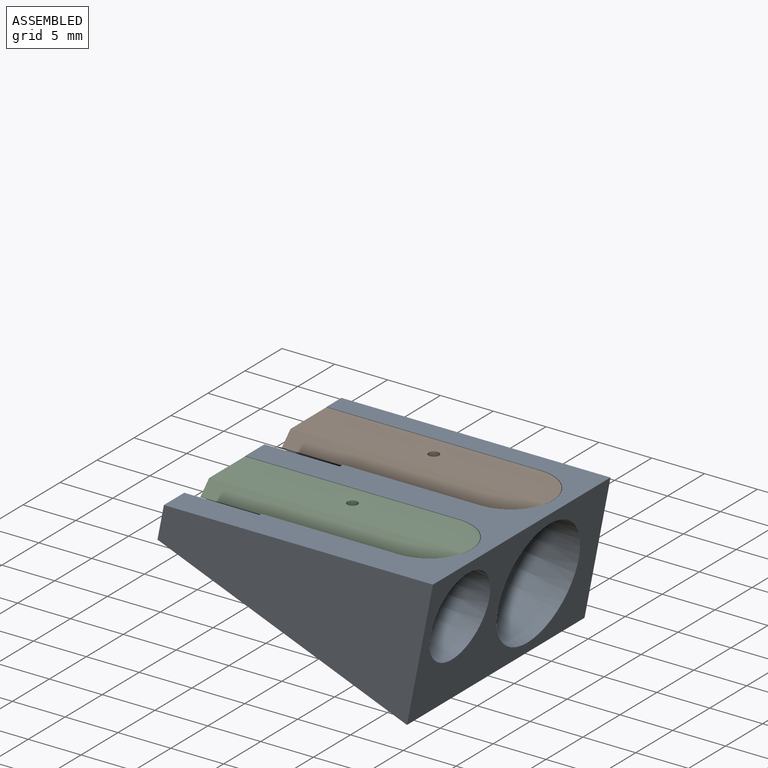
[diagram: assembled view]
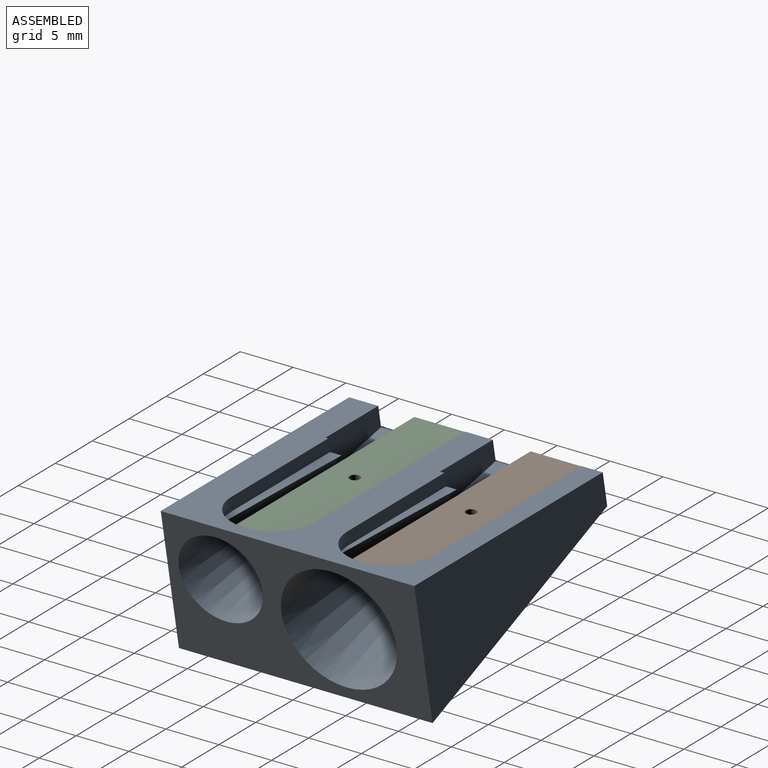
[diagram: assembled view, second angle]
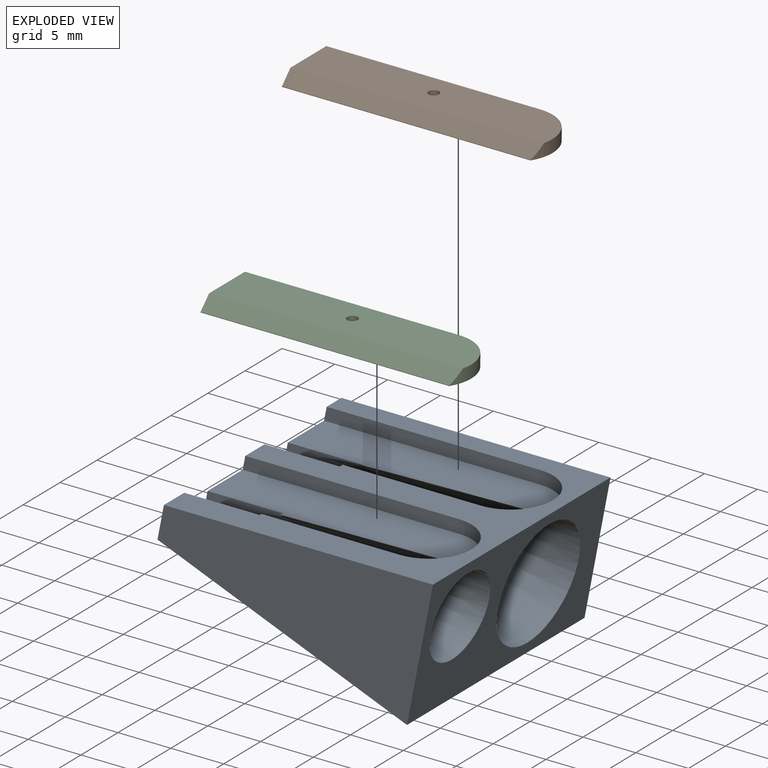
[diagram: exploded view]
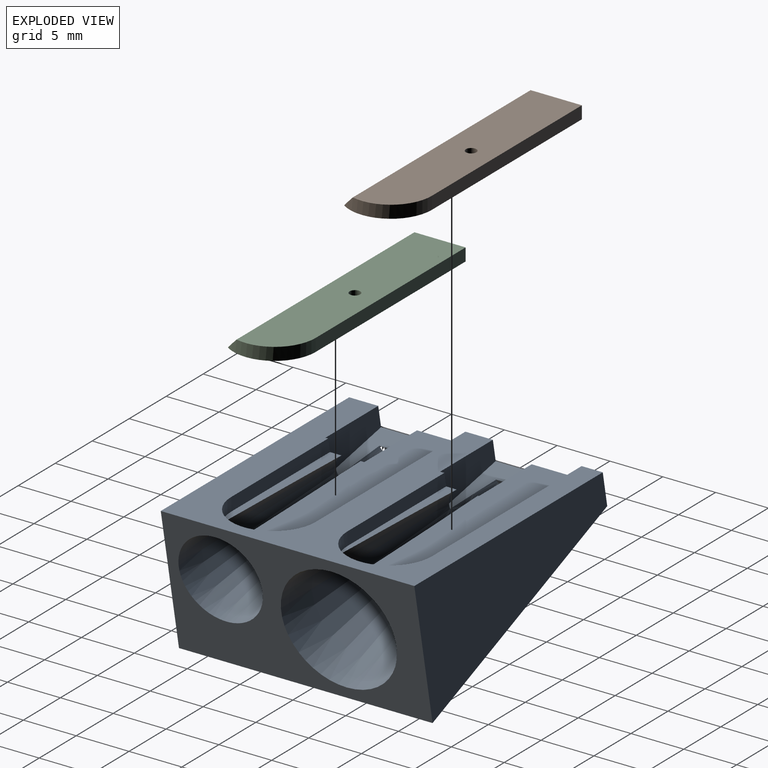
[diagram: exploded view, second angle]
ASSEMBLY  parts=3 mates=2
PART A: 30 faces, bbox 14.1x26.7x25.2 mm
  f0: plane 25x24mm, normal (0.98,0.19,0), area 232.8mm2, adj f1,f9,f10,f11,f19,f20,f21,f22
  f1: plane 13.09x3.77mm, normal (0,0,-1), area 16.5mm2, adj f0,f2,f9,f29
  f2: plane 15.19x2.95mm, normal (0.98,0.19,0), area 12.6mm2, adj f1,f3,f9,f29
  f3: cone r=3.99mm half-angle=7.4deg, axis (0.06,-1,0), area 296.9mm2, adj f2,f4,f5,f6,f7,f8,f9,f25
  f4: plane 24.01x5.1mm, normal (0.98,0.19,0), area 113.9mm2, adj f3,f5,f6,f9,f10,f27
  f5: plane 0.35x0.31mm, normal (0,1,0), area 0mm2, adj f3,f4,f6
  f6: plane 7x2.09mm, normal (0,0,1), area 6.2mm2, adj f3,f4,f5,f8,f27
  f7: cone r=0mm half-angle=86.4deg, axis (0.06,-1,0), area 0mm2, adj f3,f8
  f8: plane 8.17x4.67mm, normal (1,0,0), area 13.3mm2, adj f3,f6,f7,f27,f28,f29
  f9: cylinder r=4mm len=8mm, axis (0.98,0.19,0), area 15.2mm2, adj f0,f1,f2,f3,f4,f10
  f10: plane 20.09x5.13mm, normal (0,0,1), area 25.4mm2, adj f0,f4,f9,f27
  f11: plane 7x3.36mm, normal (0,0,-1), area 18.8mm2, adj f0,f12,f19,f27
  f12: plane 7.1x3.6mm, normal (1,0,0), area 12.3mm2, adj f11,f13,f14,f18,f19,f27
  f13: plane 1.82x0.59mm, normal (0,-1,0), area 0.8mm2, adj f12,f14
  f14: cone r=1mm half-angle=11deg, axis (0,-1,0), area 406mm2, adj f12,f13,f15,f16,f17,f18,f19,f21
  f15: plane 24.01x5mm, normal (0.98,0.19,0), area 111.9mm2, adj f14,f16,f18,f21,f22,f27
  f16: plane 0.1x0.07mm, normal (0,1,0), area 0mm2, adj f14,f15,f18
  f17: plane 14.8x2.88mm, normal (0.98,0.19,0), area 10mm2, adj f14,f19,f20,f21
  f18: plane 7x2.09mm, normal (0,0,1), area 3.7mm2, adj f12,f14,f15,f16,f27
  f19: plane 3.36x1.4mm, normal (0,1,0), area 1.9mm2, adj f0,f11,f12,f14,f17,f20
  f20: plane 13.09x3.77mm, normal (0,0,-1), area 16.5mm2, adj f0,f17,f19,f21
  f21: cylinder r=4mm len=8mm, axis (0.98,0.19,0), area 15.2mm2, adj f0,f14,f15,f17,f20,f22
  f22: plane 20.09x5.13mm, normal (0,0,1), area 25.4mm2, adj f0,f15,f21,f27
  f23: plane 25x12.9mm, normal (0,0,-1), area 201mm2, adj f0,f24,f25,f27
  f24: plane 25x24mm, normal (-0.98,0.19,0), area 611.2mm2, adj f23,f25,f26,f27
  f25: plane 24x12.9mm, normal (0,-1,0), area 166.9mm2, adj f0,f3,f14,f23,f24,f26
  f26: plane 25x12.9mm, normal (0,0,1), area 201mm2, adj f0,f24,f25,f27
  f27: plane 24x3.18mm, normal (0,1,0), area 50.1mm2, adj f0,f4,f6,f8,f10,f11,f12,f15
  f28: plane 7x3.36mm, normal (0,0,-1), area 18.8mm2, adj f0,f8,f27,f29
  f29: plane 3.38x1.36mm, normal (0,1,0), area 2mm2, adj f0,f1,f2,f3,f8,f28
PART B: 8 faces, bbox 24.2x6x1.2 mm
  f0: plane 6x1.2mm, normal (-1,0,0), area 6.5mm2, adj f1,f3,f4,f5,f6
  f1: plane 20.25x1.2mm, normal (0,-1,0), area 24.3mm2, adj f0,f2,f4,f5
  f2: cylinder r=3.9mm len=6mm, axis (0,0,-1), area 9.3mm2, adj f1,f3,f4,f5,f6
  f3: plane 23.54x0.05mm, normal (0,1,0), area 1.2mm2, adj f0,f2,f4,f6
  f4: plane 24.15x6mm, normal (0,0,1), area 140.4mm2, adj f0,f1,f2,f3,f7
  f5: plane 24.15x4.85mm, normal (0,0,-1), area 113mm2, adj f0,f1,f2,f6,f7
  f6: plane 24.03x1.15mm, normal (0,0.71,-0.71), area 38.7mm2, adj f0,f2,f3,f5
  f7: cylinder r=0.5mm len=1.2mm, axis (0,0,1), area 3.8mm2, adj f4,f5
PART C: same geometry as B
PLACE A rot(axis=(0.65,-0.54,0.54),113.9deg) t=(23.25,2,-11.41)mm
PLACE B rot(axis=(1,0,0),180deg) t=(0.21,0,1.2)mm
PLACE C rot(axis=(1,0,0),180deg) t=(0.21,-11,1.2)mm
MATE fastened B.f4 <-> A.f15  axis (0,0,1) through (20.46,0,0)mm
MATE fastened C.f4 <-> A.f4  axis (0,0,1) through (20.46,-11,0)mm
